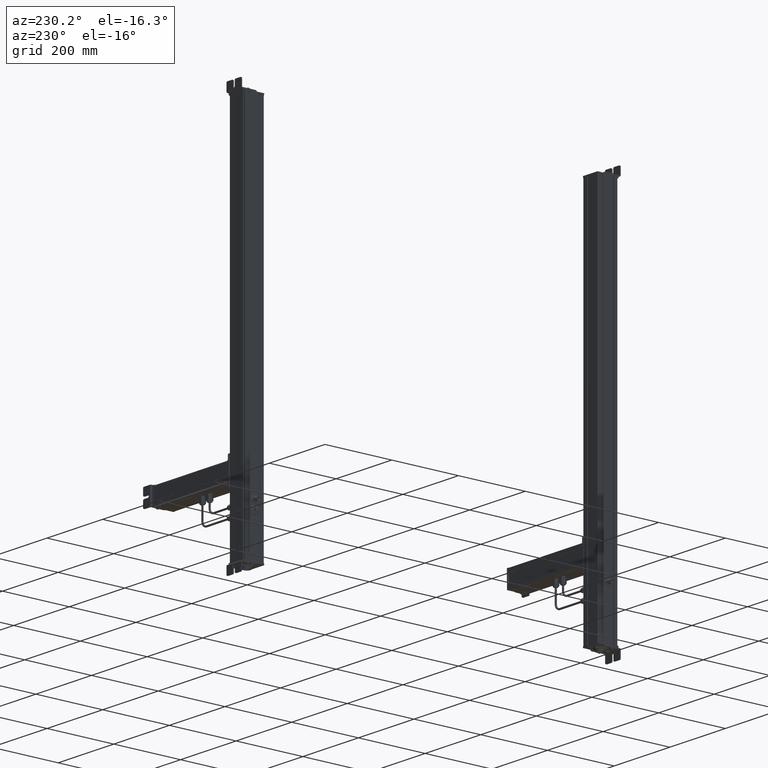
[diagram: clean part render]
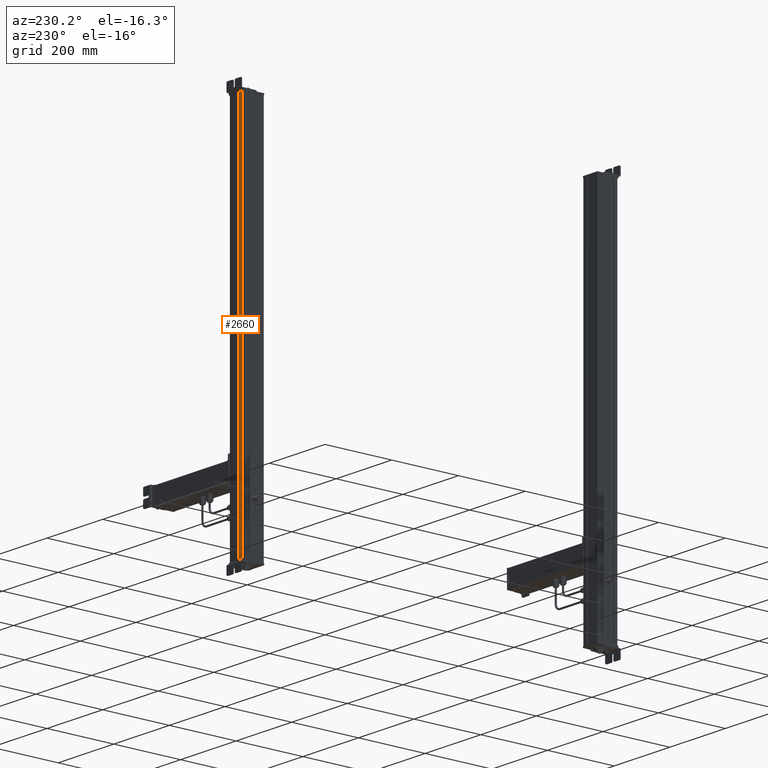
[diagram: same view with one face highlighted and labeled with its STEP entity id]
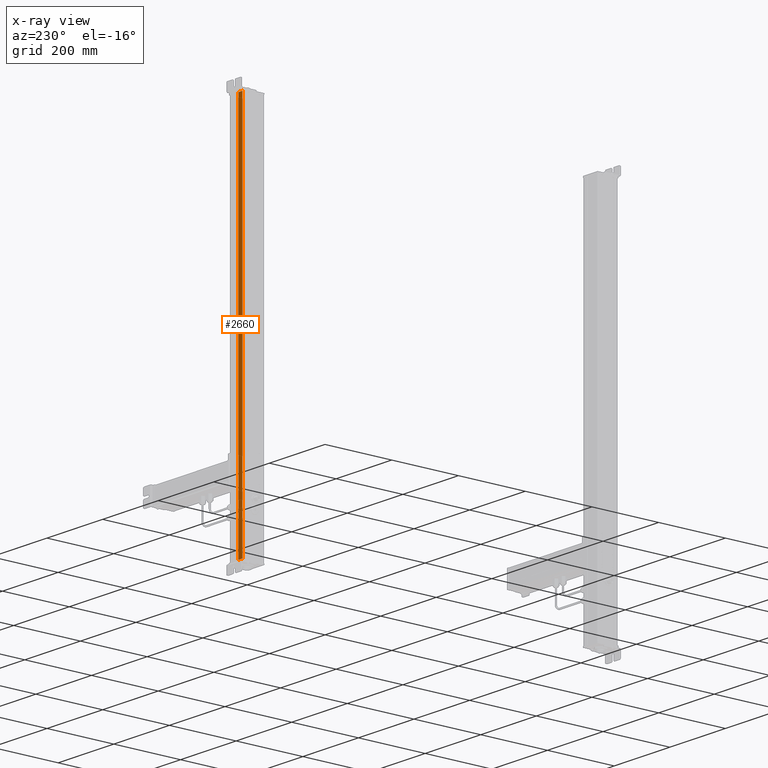
[diagram: x-ray of the same camera — body ghosted, the highlighted face saturated]
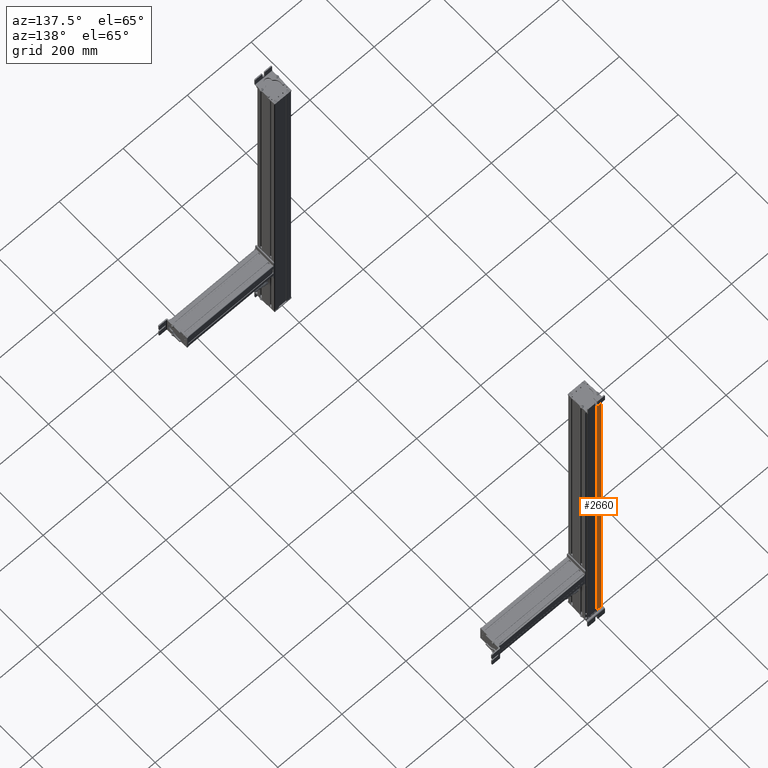
[diagram: same view with one face highlighted and labeled with its STEP entity id]
A machine part, auxiliary view. The second image highlights one B-rep face of the part: STEP entity #2660.
The next image is the same camera in x-ray: the body ghosted, the highlighted face saturated — about 0% of this face is hidden behind the body in this view.
A second angle (auxiliary view) of the same face is appended — the face is thin or edge-on in the first view.
In plain terms, the highlighted planar face has unit normal (0, 1, 0).
Its self-contained STEP definition (entity closure, byte-faithful):
#2480=CARTESIAN_POINT('Axis2P3D Location',(647.67209889,120.060780121,0.)) ;
#2613=CARTESIAN_POINT('Vertex',(647.67209889,120.060780121,1122.)) ;
#2620=CARTESIAN_POINT('Vertex',(647.67209889,120.060780121,0.)) ;
#2623=CARTESIAN_POINT('Line Origine',(647.67209889,120.060780121,561.)) ;
#2635=CARTESIAN_POINT('Line Origine',(654.908380451,120.060780121,0.)) ;
#2639=CARTESIAN_POINT('Vertex',(662.144662012,120.060780121,0.)) ;
#2642=CARTESIAN_POINT('Line Origine',(662.144662012,120.060780121,561.)) ;
#2646=CARTESIAN_POINT('Vertex',(662.144662012,120.060780121,1122.)) ;
#2649=CARTESIAN_POINT('Line Origine',(654.908380451,120.060780121,1122.)) ;
#2481=DIRECTION('Axis2P3D Direction',(0.,-1.,0.)) ;
#2482=DIRECTION('Axis2P3D XDirection',(1.,0.,0.)) ;
#2624=DIRECTION('Vector Direction',(0.,0.,1.)) ;
#2636=DIRECTION('Vector Direction',(1.,0.,0.)) ;
#2643=DIRECTION('Vector Direction',(0.,0.,1.)) ;
#2650=DIRECTION('Vector Direction',(1.,0.,0.)) ;
#2483=AXIS2_PLACEMENT_3D('Plane Axis2P3D',#2480,#2481,#2482) ;
#2655=ORIENTED_EDGE('',*,*,#2627,.F.) ;
#2656=ORIENTED_EDGE('',*,*,#2641,.T.) ;
#2657=ORIENTED_EDGE('',*,*,#2648,.T.) ;
#2658=ORIENTED_EDGE('',*,*,#2653,.F.) ;
#2625=VECTOR('Line Direction',#2624,1.) ;
#2637=VECTOR('Line Direction',#2636,1.) ;
#2644=VECTOR('Line Direction',#2643,1.) ;
#2651=VECTOR('Line Direction',#2650,1.) ;
#2660=ADVANCED_FACE('Body.2',(#2659),#2484,.T.) ;
#2627=EDGE_CURVE('',#2621,#2614,#2626,.T.) ;
#2641=EDGE_CURVE('',#2621,#2640,#2638,.T.) ;
#2648=EDGE_CURVE('',#2640,#2647,#2645,.T.) ;
#2653=EDGE_CURVE('',#2614,#2647,#2652,.T.) ;
#2654=EDGE_LOOP('',(#2655,#2656,#2657,#2658)) ;
#2659=FACE_OUTER_BOUND('',#2654,.T.) ;
#2626=LINE('Line',#2623,#2625) ;
#2638=LINE('Line',#2635,#2637) ;
#2645=LINE('Line',#2642,#2644) ;
#2652=LINE('Line',#2649,#2651) ;
#2484=PLANE('Plane',#2483) ;
#2614=VERTEX_POINT('',#2613) ;
#2621=VERTEX_POINT('',#2620) ;
#2640=VERTEX_POINT('',#2639) ;
#2647=VERTEX_POINT('',#2646) ;